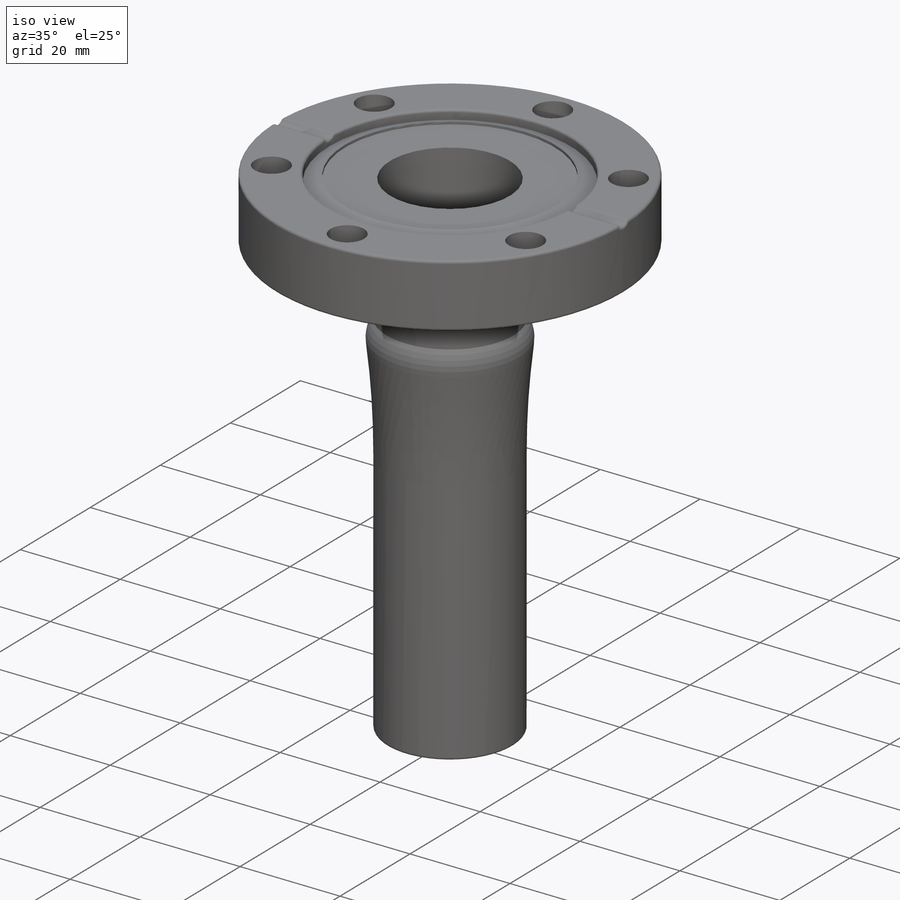
[diagram: iso view]
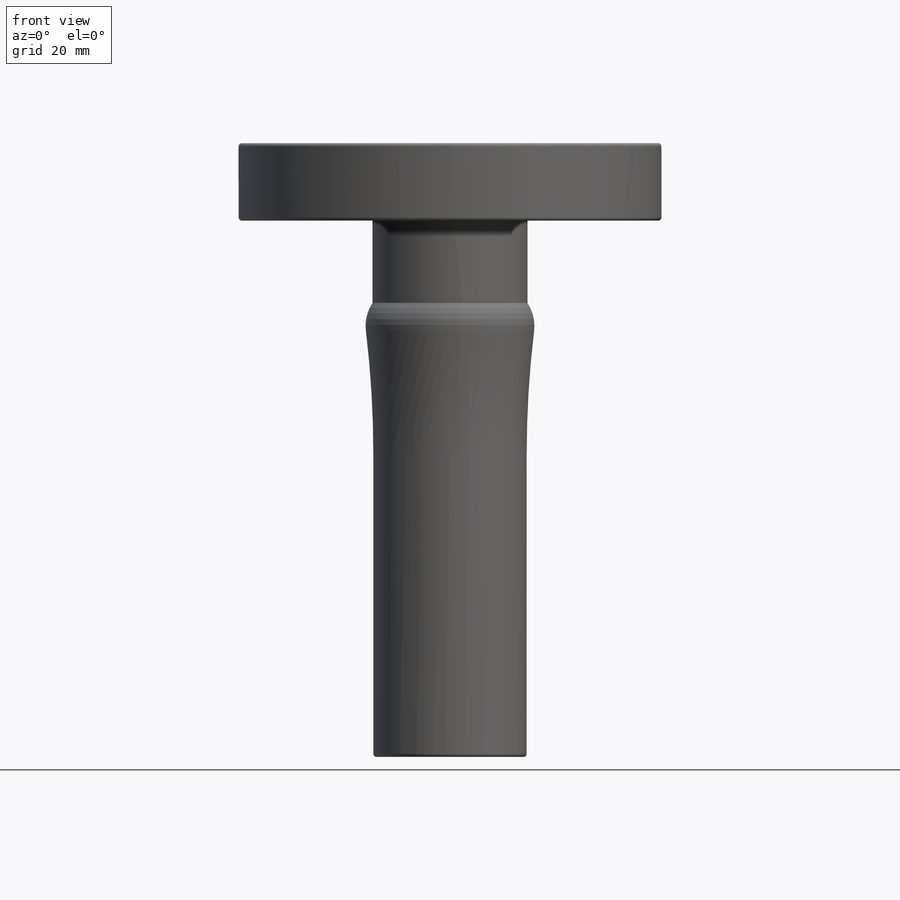
[diagram: front view]
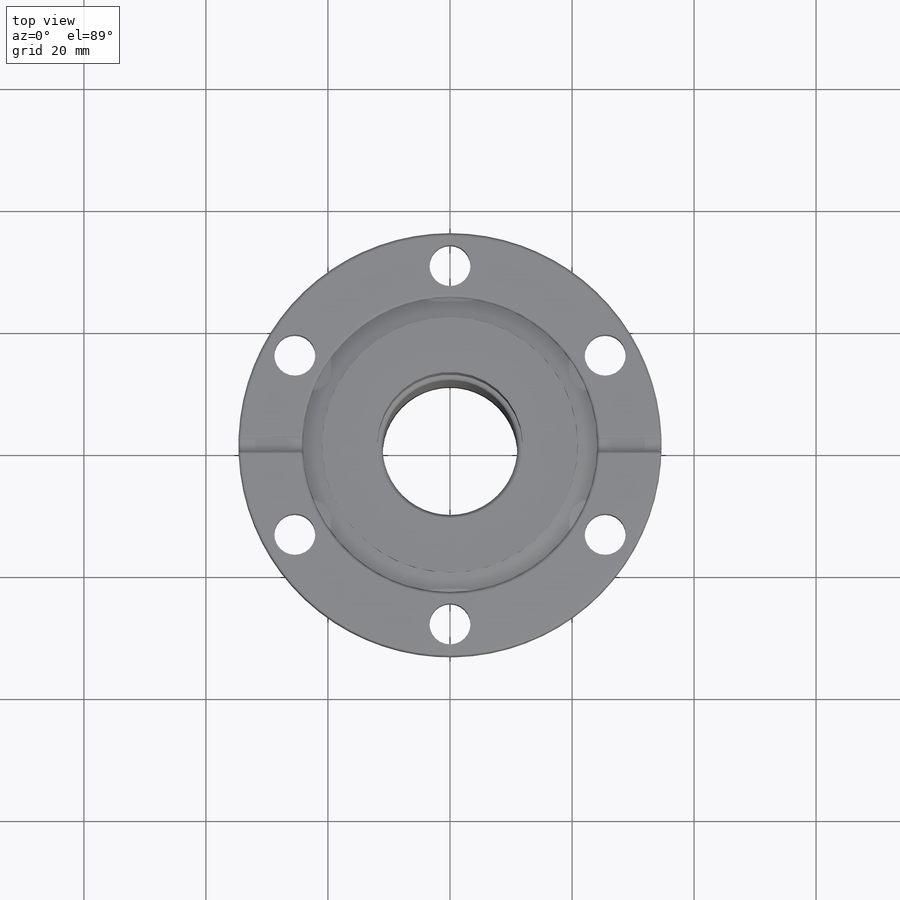
[diagram: top view]
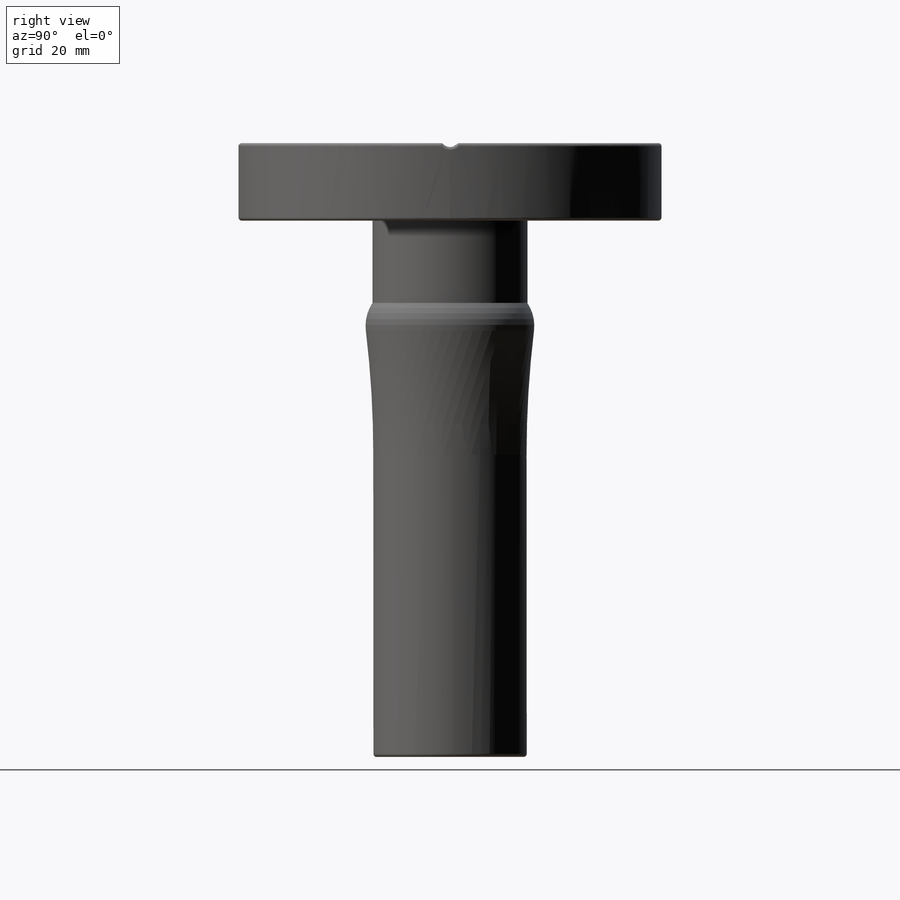
[diagram: right view]
SOLIDWORKS PART (.sldprt)
format: sldprt  version: not decoded by parser v0  size: 535,040 bytes
history: native  units: mm
features: sketch x8, cut_extrude x4, fillet x3, revolve x2, material x1, cut_revolve x1, pattern_circular x1, extrude x1 (+14 scaffold rows collapsed)
feature tree (35):
  scaffold x14  (default folders/planes/origin — collapsed)
  material  "AISI 304"
  sketch  "Sketch1"  dims[c1.D1=~4.520195mm c2.D1=20.0deg c2.D=12.7mm c2.C=69.342mm c2.D4=48.3108mm c2.D5=41.91mm c2.D6=1.1684mm c2.D7=0.6604mm c3.D5=3.2004mm]
  revolve  "Blank"  Angle=360deg
  sketch  "Sketch4"  dims[c1.D1=~1.311093mm c2.D1=20.0deg c2.D2=3.2004mm c2.D3=0.6604mm c2.D4=1.1684mm c2.F=48.3108mm c2.D5=~1.82525mm c3.D3=0.508mm]
  cut_revolve  "Top Knife Edge"  Angle=360deg
  sketch  "Sketch3"  dims[c1.D1=3.175mm c1.D3=0.508mm c2.D1=2.54mm c2.D2=13.2588mm c3.D1=2.54mm c3.D2=2.54mm c3.D4=5.08mm]
  cut_extrude  "Alignment Notch"  Depth=2.54mm
  fillet  "Top Fillet"  Radius=0.508mm
  sketch  "Sketch13"  dims[D1=25.4mm]
  cut_extrude  "Cut-Extrude1"  [1 undecoded]
  fillet  "Blank Fillet"  Radius=0.508mm
  sketch  "Sketch2"  dims[Bolt Hole=6.731mm S=58.7375mm D1=115.9256mm start angle=120.0deg]
  cut_extrude  "Thru Hole"  Depth=2.54mm
  pattern_circular  "Thru Hole Pattern"  Count=6 Angle=90deg Holes=6
  sketch  "Sketch14"  dims[c1.D1=23.876mm c1.D2=~15.331219mm c2.D1=0.635mm]
  extrude  "Boss-Extrude1"  Depth=29.591mm
  sketch  "Sketch15"  dims[D1=27.94mm]
  cut_extrude  "Cut-Extrude2"  Depth=5.842mm
  sketch  "Sketch16"  dims[c1.D1=~2.187239mm c1.D2=~5.211735mm c2.D1=1.524mm c2.D2=27.686mm c2.D3=25.146mm c2.D4=74.422mm c2.D5=4.572mm c2.D6=20.32mm]
  revolve  "Revolve1"  Angle=360deg
  fillet  "Fillet3"  Radius=0.508mm
decode coverage: 19 of 20 modeling features carry decoded parameters
note: ~ marks probable driven/reference dimensions
note: 1 parameter value undecoded
note: suppression state not decoded; provenance and decode notes live in map.json
